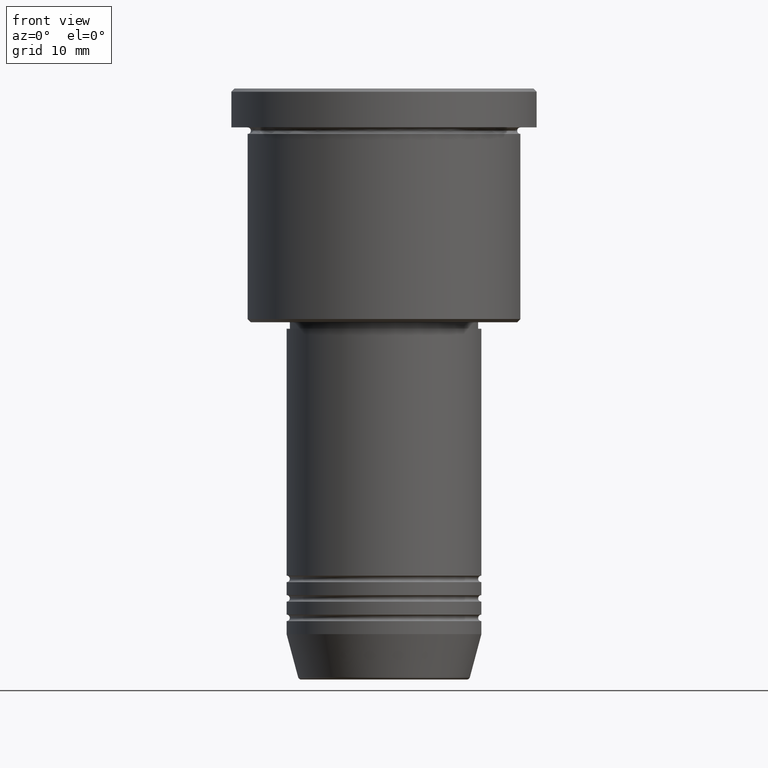
[diagram: clean part render]
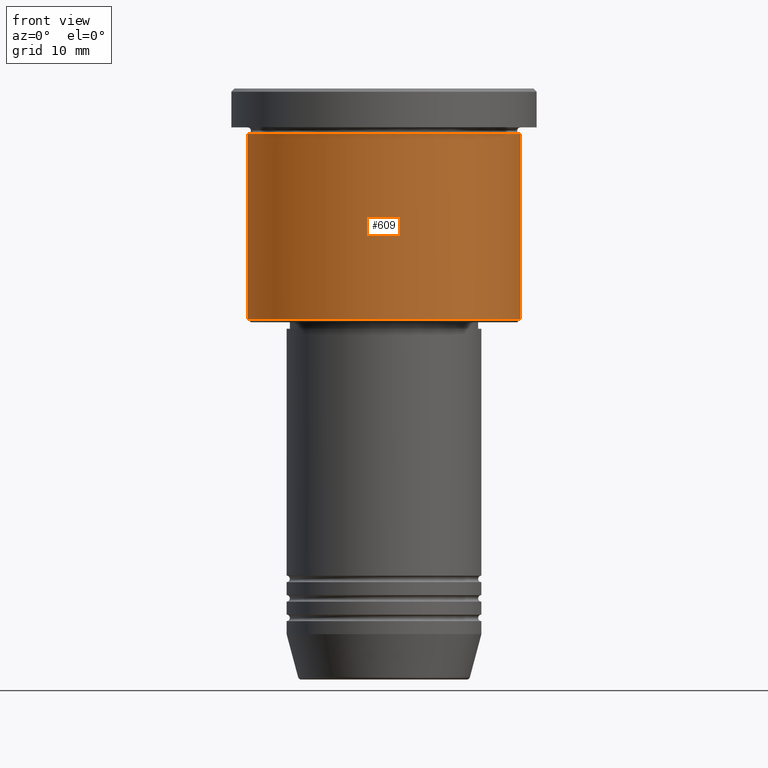
[diagram: same view with one face highlighted and labeled with its STEP entity id]
A machine part, front view. The second image highlights one B-rep face of the part: STEP entity #609.
In plain terms, the highlighted cylindrical surface (partial cylindrical patch) has radius 21 mm, axis along (-0, -0, 1).
Its self-contained STEP definition (entity closure, byte-faithful):
#15 = VERTEX_POINT ( 'NONE', #388 ) ;
#36 = VERTEX_POINT ( 'NONE', #982 ) ;
#39 = CIRCLE ( 'NONE', #717, 21.00000000000000000 ) ;
#77 = CIRCLE ( 'NONE', #752, 21.00000000000000000 ) ;
#86 = CARTESIAN_POINT ( 'NONE',  ( 21.00000000000000000, 0.000000000000000000, 0.000000000000000000 ) ) ;
#92 = LINE ( 'NONE', #630, #138 ) ;
#138 = VECTOR ( 'NONE', #177, 1000.000000000000000 ) ;
#177 = DIRECTION ( 'NONE',  ( -0.000000000000000000, -0.000000000000000000, 1.000000000000000000 ) ) ;
#181 = EDGE_CURVE ( 'NONE', #766, #588, #92, .T. ) ;
#217 = EDGE_CURVE ( 'NONE', #36, #15, #1174, .T. ) ;
#230 = CARTESIAN_POINT ( 'NONE',  ( -21.00000000000000000, 2.571758278209441661E-15, -6.999999999999994671 ) ) ;
#246 = EDGE_CURVE ( 'NONE', #588, #15, #39, .T. ) ;
#253 = CARTESIAN_POINT ( 'NONE',  ( 0.000000000000000000, 0.000000000000000000, -6.999999999999994671 ) ) ;
#256 = DIRECTION ( 'NONE',  ( -0.000000000000000000, -0.000000000000000000, 1.000000000000000000 ) ) ;
#358 = DIRECTION ( 'NONE',  ( 1.000000000000000000, 0.000000000000000000, 0.000000000000000000 ) ) ;
#388 = CARTESIAN_POINT ( 'NONE',  ( 21.00000000000000000, 0.000000000000000000, -6.999999999999994671 ) ) ;
#450 = EDGE_CURVE ( 'NONE', #766, #36, #77, .T. ) ;
#474 = VECTOR ( 'NONE', #831, 1000.000000000000000 ) ;
#528 = AXIS2_PLACEMENT_3D ( 'NONE', #883, #796, #800 ) ;
#588 = VERTEX_POINT ( 'NONE', #230 ) ;
#590 = ORIENTED_EDGE ( 'NONE', *, *, #246, .F. ) ;
#599 = CYLINDRICAL_SURFACE ( 'NONE', #528, 21.00000000000000000 ) ;
#609 = ADVANCED_FACE ( 'NONE', ( #1049 ), #599, .T. ) ;
#630 = CARTESIAN_POINT ( 'NONE',  ( -21.00000000000000000, 2.571758278209441661E-15, 0.000000000000000000 ) ) ;
#685 = EDGE_LOOP ( 'NONE', ( #1001, #1091, #998, #590 ) ) ;
#717 = AXIS2_PLACEMENT_3D ( 'NONE', #253, #256, #358 ) ;
#736 = CARTESIAN_POINT ( 'NONE',  ( -21.00000000000000000, 2.571758278209441661E-15, -35.50000000000000711 ) ) ;
#752 = AXIS2_PLACEMENT_3D ( 'NONE', #1060, #975, #807 ) ;
#766 = VERTEX_POINT ( 'NONE', #736 ) ;
#796 = DIRECTION ( 'NONE',  ( -0.000000000000000000, -0.000000000000000000, 1.000000000000000000 ) ) ;
#800 = DIRECTION ( 'NONE',  ( 1.000000000000000000, 0.000000000000000000, 0.000000000000000000 ) ) ;
#807 = DIRECTION ( 'NONE',  ( -1.000000000000000000, 0.000000000000000000, 0.000000000000000000 ) ) ;
#831 = DIRECTION ( 'NONE',  ( -0.000000000000000000, -0.000000000000000000, 1.000000000000000000 ) ) ;
#883 = CARTESIAN_POINT ( 'NONE',  ( 0.000000000000000000, 0.000000000000000000, 0.000000000000000000 ) ) ;
#975 = DIRECTION ( 'NONE',  ( -0.000000000000000000, -0.000000000000000000, 1.000000000000000000 ) ) ;
#982 = CARTESIAN_POINT ( 'NONE',  ( 21.00000000000000000, 0.000000000000000000, -35.50000000000000711 ) ) ;
#998 = ORIENTED_EDGE ( 'NONE', *, *, #217, .T. ) ;
#1001 = ORIENTED_EDGE ( 'NONE', *, *, #181, .F. ) ;
#1049 = FACE_OUTER_BOUND ( 'NONE', #685, .T. ) ;
#1060 = CARTESIAN_POINT ( 'NONE',  ( 0.000000000000000000, 0.000000000000000000, -35.50000000000000711 ) ) ;
#1091 = ORIENTED_EDGE ( 'NONE', *, *, #450, .T. ) ;
#1174 = LINE ( 'NONE', #86, #474 ) ;